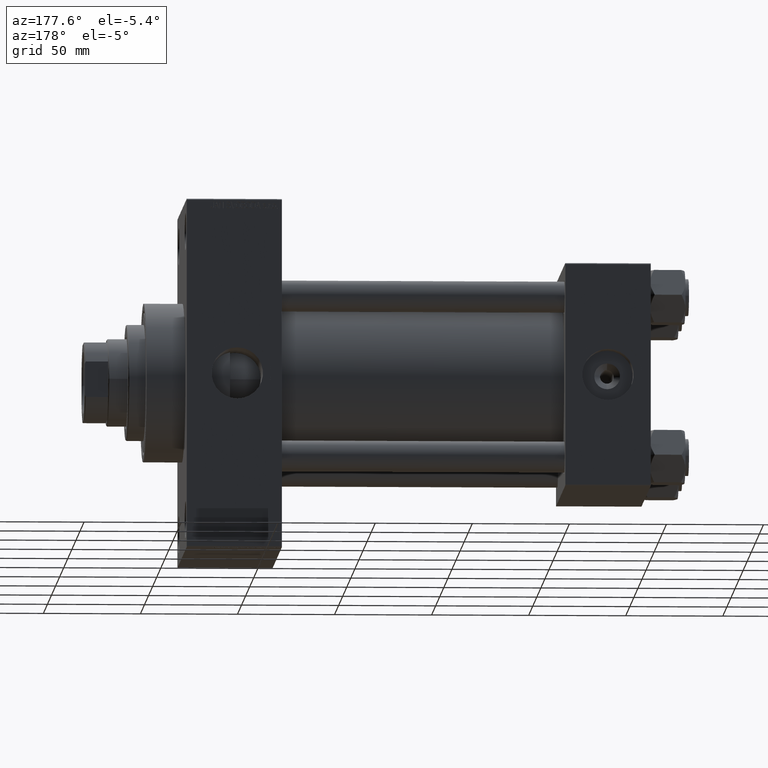
[diagram: clean part render]
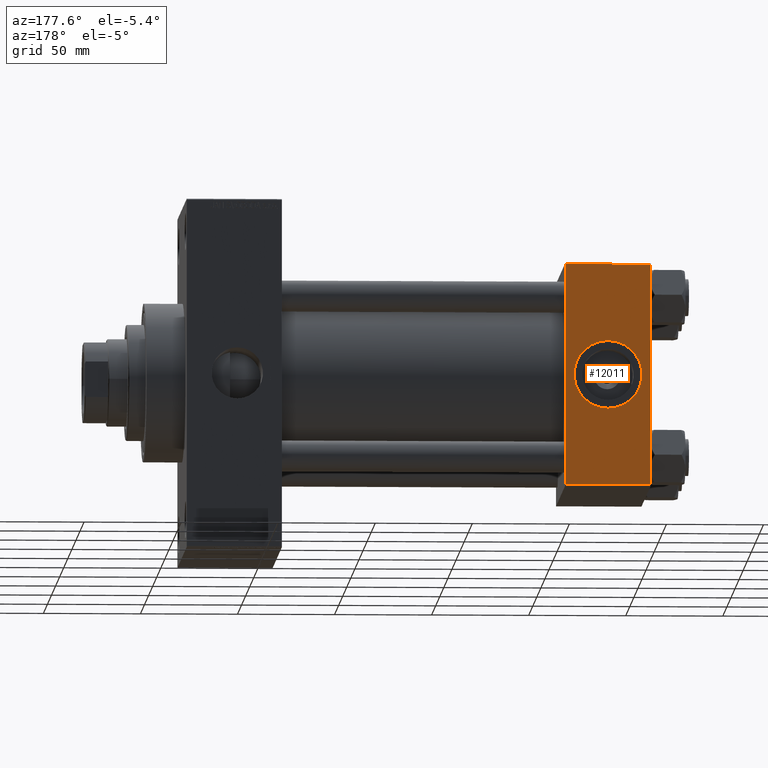
[diagram: same view with one face highlighted and labeled with its STEP entity id]
A machine part, auxiliary view. The second image highlights one B-rep face of the part: STEP entity #12011.
In plain terms, the highlighted planar face has unit normal (0, 1, 0).
Its self-contained STEP definition (entity closure, byte-faithful):
#208 = CARTESIAN_POINT ( 'NONE',  ( 22.00000000000000000, 57.49999999999999289, 0.000000000000000000 ) ) ;
#1493 = VERTEX_POINT ( 'NONE', #42160 ) ;
#1579 = EDGE_CURVE ( 'NONE', #10396, #29741, #46501, .T. ) ;
#2617 = FACE_BOUND ( 'NONE', #29569, .T. ) ;
#4121 = CARTESIAN_POINT ( 'NONE',  ( 22.00000000000000000, 57.49999999999999289, 17.50000000000000000 ) ) ;
#4753 = CARTESIAN_POINT ( 'NONE',  ( 44.00000000000000000, 57.49999999999999289, 57.50000000000000711 ) ) ;
#6025 = VECTOR ( 'NONE', #23128, 1000.000000000000000 ) ;
#9258 = ORIENTED_EDGE ( 'NONE', *, *, #41362, .F. ) ;
#10149 = CARTESIAN_POINT ( 'NONE',  ( 22.00000000000000000, 57.49999999999999289, 0.000000000000000000 ) ) ;
#10396 = VERTEX_POINT ( 'NONE', #35676 ) ;
#12011 = ADVANCED_FACE ( 'NONE', ( #2617, #34856 ), #12817, .T. ) ;
#12640 = LINE ( 'NONE', #38065, #14184 ) ;
#12817 = PLANE ( 'NONE',  #36281 ) ;
#14184 = VECTOR ( 'NONE', #15797, 1000.000000000000000 ) ;
#15797 = DIRECTION ( 'NONE',  ( -1.000000000000000000, 0.000000000000000000, 0.000000000000000000 ) ) ;
#15971 = VERTEX_POINT ( 'NONE', #21159 ) ;
#18768 = ORIENTED_EDGE ( 'NONE', *, *, #34814, .F. ) ;
#18947 = EDGE_LOOP ( 'NONE', ( #47881, #19198, #22389, #20913 ) ) ;
#19198 = ORIENTED_EDGE ( 'NONE', *, *, #37421, .T. ) ;
#19779 = VECTOR ( 'NONE', #46737, 1000.000000000000000 ) ;
#20301 = DIRECTION ( 'NONE',  ( 0.000000000000000000, -0.000000000000000000, 1.000000000000000000 ) ) ;
#20430 = VERTEX_POINT ( 'NONE', #4121 ) ;
#20653 = EDGE_CURVE ( 'NONE', #29741, #15971, #45434, .T. ) ;
#20803 = CARTESIAN_POINT ( 'NONE',  ( 0.000000000000000000, 57.49999999999999289, 57.50000000000000711 ) ) ;
#20913 = ORIENTED_EDGE ( 'NONE', *, *, #1579, .T. ) ;
#21159 = CARTESIAN_POINT ( 'NONE',  ( 44.00000000000000000, 57.49999999999999289, -57.00000000000000711 ) ) ;
#21621 = CARTESIAN_POINT ( 'NONE',  ( 0.000000000000000000, 57.49999999999999289, -57.00000000000000711 ) ) ;
#22389 = ORIENTED_EDGE ( 'NONE', *, *, #47510, .F. ) ;
#22468 = DIRECTION ( 'NONE',  ( 0.000000000000000000, 0.000000000000000000, 1.000000000000000000 ) ) ;
#23128 = DIRECTION ( 'NONE',  ( 0.000000000000000000, 0.000000000000000000, -1.000000000000000000 ) ) ;
#25570 = LINE ( 'NONE', #20803, #32762 ) ;
#27563 = DIRECTION ( 'NONE',  ( -0.000000000000000000, 1.000000000000000000, 0.000000000000000000 ) ) ;
#27980 = CIRCLE ( 'NONE', #41176, 17.50000000000000000 ) ;
#29569 = EDGE_LOOP ( 'NONE', ( #9258, #18768 ) ) ;
#29741 = VERTEX_POINT ( 'NONE', #38191 ) ;
#30300 = VERTEX_POINT ( 'NONE', #21621 ) ;
#31448 = CARTESIAN_POINT ( 'NONE',  ( 44.00000000000000000, 57.49999999999999289, 57.50000000000000711 ) ) ;
#32611 = DIRECTION ( 'NONE',  ( 0.000000000000000000, 0.000000000000000000, -1.000000000000000000 ) ) ;
#32679 = CARTESIAN_POINT ( 'NONE',  ( 44.00000000000000000, 57.49999999999999289, 57.00000000000003553 ) ) ;
#32729 = CIRCLE ( 'NONE', #44355, 17.50000000000000000 ) ;
#32762 = VECTOR ( 'NONE', #32611, 1000.000000000000000 ) ;
#34100 = DIRECTION ( 'NONE',  ( 0.000000000000000000, 1.000000000000000000, 0.000000000000000000 ) ) ;
#34814 = EDGE_CURVE ( 'NONE', #1493, #20430, #27980, .T. ) ;
#34856 = FACE_OUTER_BOUND ( 'NONE', #18947, .T. ) ;
#35588 = DIRECTION ( 'NONE',  ( 0.000000000000000000, 1.000000000000000000, 0.000000000000000000 ) ) ;
#35676 = CARTESIAN_POINT ( 'NONE',  ( 0.000000000000000000, 57.49999999999999289, 57.00000000000003553 ) ) ;
#36281 = AXIS2_PLACEMENT_3D ( 'NONE', #31448, #27563, #20301 ) ;
#37421 = EDGE_CURVE ( 'NONE', #15971, #30300, #12640, .T. ) ;
#38065 = CARTESIAN_POINT ( 'NONE',  ( 44.00000000000000000, 57.49999999999999289, -57.00000000000000711 ) ) ;
#38191 = CARTESIAN_POINT ( 'NONE',  ( 44.00000000000000000, 57.49999999999999289, 57.00000000000003553 ) ) ;
#41176 = AXIS2_PLACEMENT_3D ( 'NONE', #208, #34100, #22468 ) ;
#41362 = EDGE_CURVE ( 'NONE', #20430, #1493, #32729, .T. ) ;
#42160 = CARTESIAN_POINT ( 'NONE',  ( 22.00000000000000355, 57.49999999999999289, -17.50000000000000000 ) ) ;
#42848 = DIRECTION ( 'NONE',  ( 0.000000000000000000, 0.000000000000000000, 1.000000000000000000 ) ) ;
#44355 = AXIS2_PLACEMENT_3D ( 'NONE', #10149, #35588, #42848 ) ;
#45434 = LINE ( 'NONE', #4753, #6025 ) ;
#46501 = LINE ( 'NONE', #32679, #19779 ) ;
#46737 = DIRECTION ( 'NONE',  ( 1.000000000000000000, 0.000000000000000000, 0.000000000000000000 ) ) ;
#47510 = EDGE_CURVE ( 'NONE', #10396, #30300, #25570, .T. ) ;
#47881 = ORIENTED_EDGE ( 'NONE', *, *, #20653, .T. ) ;